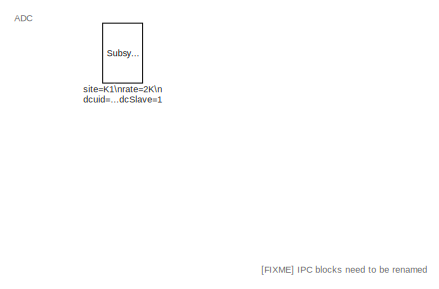
[diagram: root canvas - part 1/4, top right region]
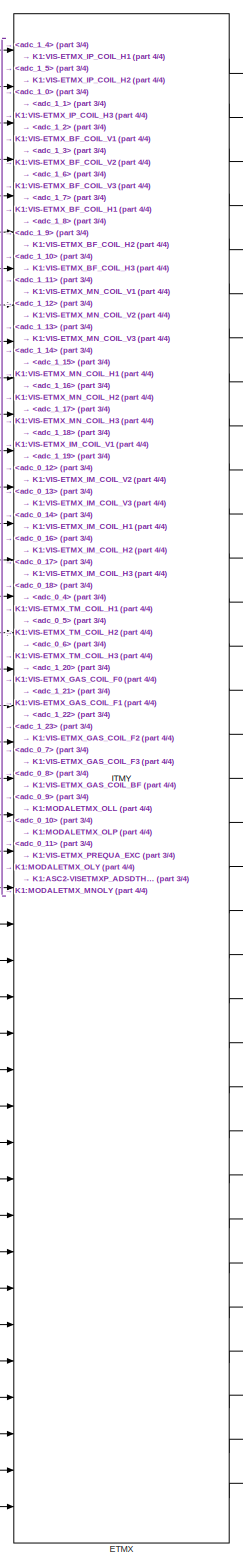
[diagram: root canvas - part 2/4, right side, full height]
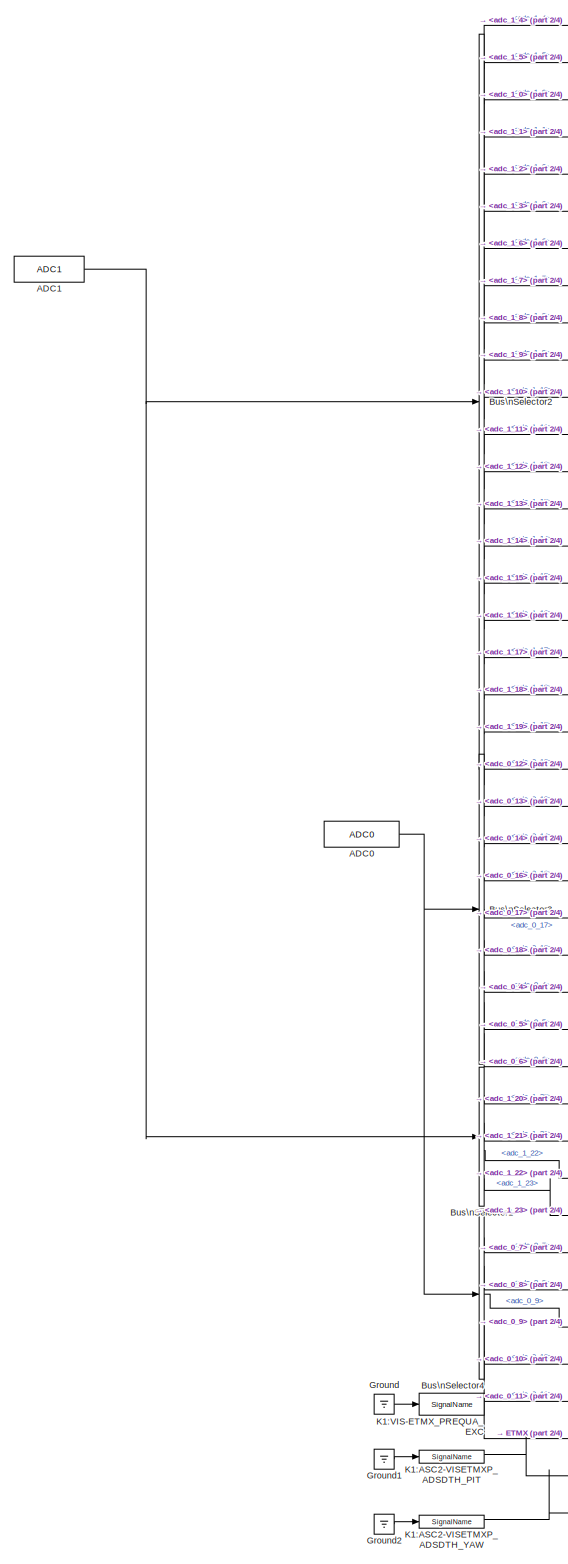
[diagram: root canvas - part 3/4, left side, full height]
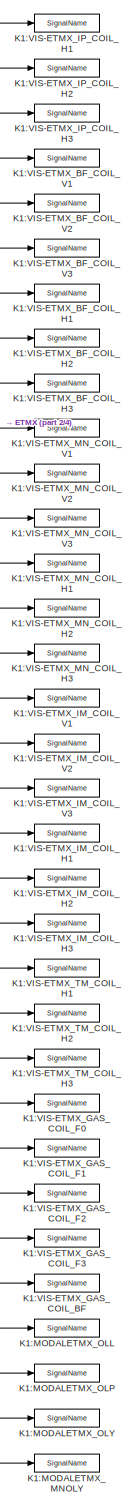
[diagram: root canvas - part 4/4, right side, full height]
MODEL k1modaletmx
KIND model
BLOCK [Reference] ADC0  REF=cdsAdcx0/ADC0
  AttributesFormatString = %<Description>\\n%<Tag>
  Description = type-GSC_16AI64SSA\ncard_num=0
  Ports = [0, 1]
  SID = 2415
  SourceBlock = cdsAdcx0/ADC0
  SourceType = SubSystem
  Tag = cdsAdc
BLOCK [Reference] ADC1  REF=cdsAdcx1/ADC1
  AttributesFormatString = %<Description>\\n%<Tag>
  Description = type-GSC_16AI64SSA\ncard_num=1
  Ports = [0, 1]
  SID = 2416
  SourceBlock = cdsAdcx1/ADC1
  SourceType = SubSystem
  Tag = cdsAdc
BLOCK [BusSelector] Bus\nSelector1
  OutputSignals = adc_1_20,adc_1_21,adc_1_22,adc_1_23
  Ports = [1, 4]
  SID = 2417
BLOCK [BusSelector] Bus\nSelector2
  OutputSignals = adc_1_4,adc_1_5,adc_1_0,adc_1_1,adc_1_2,adc_1_3,adc_1_6,adc_1_7,adc_1_8,adc_1_9,adc_1_10,adc_1_11,adc_1_12,adc_1_13,adc_1_14,adc_1_15,adc_1_16,adc_1_17,adc_1_18,adc_1_19
  Ports = [1, 20]
  SID = 2418
BLOCK [BusSelector] Bus\nSelector3
  OutputSignals = adc_0_12,adc_0_13,adc_0_14,adc_0_16,adc_0_17,adc_0_18,adc_0_4,adc_0_5,adc_0_6
  Ports = [1, 9]
  SID = 2419
BLOCK [BusSelector] Bus\nSelector4
  OutputSignals = adc_0_7,adc_0_8,adc_0_9,adc_0_10,adc_0_11
  Ports = [1, 5]
  SID = 2420
BLOCK [Reference] ETMX  REF=VISMODAL_MASTER/ITMY
  Ports = [41, 33]
  SID = 3966
  SourceBlock = VISMODAL_MASTER/ITMY
  SourceType = SubSystem
BLOCK [Ground] Ground
  SID = 2421
BLOCK [Ground] Ground1
  SID = 3976
BLOCK [Ground] Ground2
  SID = 3977
BLOCK [Reference] K1:ASC2-VISETMXP_ADSDTH_PIT  REF=cdsIPCx/SignalName
  AttributesFormatString = %<Description>\\n%<Tag>
  Description = card=0
  Ports = [1, 2]
  SID = 3974
  SourceBlock = cdsIPCx/SignalName
  SourceType = SubSystem
  Tag = cdsIPCx_RFM
BLOCK [Reference] K1:ASC2-VISETMXP_ADSDTH_YAW  REF=cdsIPCx/SignalName
  AttributesFormatString = %<Description>\\n%<Tag>
  Description = card=0
  Ports = [1, 2]
  SID = 3975
  SourceBlock = cdsIPCx/SignalName
  SourceType = SubSystem
  Tag = cdsIPCx_RFM
BLOCK [Reference] K1:MODALETMX_MNOLY  REF=cdsIPCx/SignalName
  AttributesFormatString = %<Tag>
  Description = Inter-Process Communication via Shared memory.
  Ports = [1, 2]
  SID = 3981
  SourceBlock = cdsIPCx/SignalName
  SourceType = SubSystem
  Tag = cdsIPCx_SHMEM
BLOCK [Reference] K1:MODALETMX_OLL  REF=cdsIPCx/SignalName
  AttributesFormatString = %<Tag>
  Description = Inter-Process Communication via Shared memory.
  Ports = [1, 2]
  SID = 3980
  SourceBlock = cdsIPCx/SignalName
  SourceType = SubSystem
  Tag = cdsIPCx_SHMEM
BLOCK [Reference] K1:MODALETMX_OLP  REF=cdsIPCx/SignalName
  AttributesFormatString = %<Tag>
  Description = Inter-Process Communication via Shared memory.
  Ports = [1, 2]
  SID = 3979
  SourceBlock = cdsIPCx/SignalName
  SourceType = SubSystem
  Tag = cdsIPCx_SHMEM
BLOCK [Reference] K1:MODALETMX_OLY  REF=cdsIPCx/SignalName
  AttributesFormatString = %<Tag>
  Description = Inter-Process Communication via Shared memory.
  Ports = [1, 2]
  SID = 3978
  SourceBlock = cdsIPCx/SignalName
  SourceType = SubSystem
  Tag = cdsIPCx_SHMEM
BLOCK [Reference] K1:VIS-ETMX_BF_COIL_H1  REF=cdsIPCx/SignalName
  AttributesFormatString = %<Tag>
  Description = Inter-Process Communication via Shared memory.
  Ports = [1, 2]
  SID = 3934
  SourceBlock = cdsIPCx/SignalName
  SourceType = SubSystem
  Tag = cdsIPCx_SHMEM
BLOCK [Reference] K1:VIS-ETMX_BF_COIL_H2  REF=cdsIPCx/SignalName
  AttributesFormatString = %<Tag>
  Description = Inter-Process Communication via Shared memory.
  Ports = [1, 2]
  SID = 3935
  SourceBlock = cdsIPCx/SignalName
  SourceType = SubSystem
  Tag = cdsIPCx_SHMEM
BLOCK [Reference] K1:VIS-ETMX_BF_COIL_H3  REF=cdsIPCx/SignalName
  AttributesFormatString = %<Tag>
  Description = Inter-Process Communication via Shared memory.
  Ports = [1, 2]
  SID = 3936
  SourceBlock = cdsIPCx/SignalName
  SourceType = SubSystem
  Tag = cdsIPCx_SHMEM
BLOCK [Reference] K1:VIS-ETMX_BF_COIL_V1  REF=cdsIPCx/SignalName
  AttributesFormatString = %<Tag>
  Description = Inter-Process Communication via Shared memory.
  Ports = [1, 2]
  SID = 3937
  SourceBlock = cdsIPCx/SignalName
  SourceType = SubSystem
  Tag = cdsIPCx_SHMEM
BLOCK [Reference] K1:VIS-ETMX_BF_COIL_V2  REF=cdsIPCx/SignalName
  AttributesFormatString = %<Tag>
  Description = Inter-Process Communication via Shared memory.
  Ports = [1, 2]
  SID = 3938
  SourceBlock = cdsIPCx/SignalName
  SourceType = SubSystem
  Tag = cdsIPCx_SHMEM
BLOCK [Reference] K1:VIS-ETMX_BF_COIL_V3  REF=cdsIPCx/SignalName
  AttributesFormatString = %<Tag>
  Description = Inter-Process Communication via Shared memory.
  Ports = [1, 2]
  SID = 3939
  SourceBlock = cdsIPCx/SignalName
  SourceType = SubSystem
  Tag = cdsIPCx_SHMEM
BLOCK [Reference] K1:VIS-ETMX_GAS_COIL_BF  REF=cdsIPCx/SignalName
  AttributesFormatString = %<Tag>
  Description = Inter-Process Communication via Shared memory.
  Ports = [1, 2]
  SID = 3940
  SourceBlock = cdsIPCx/SignalName
  SourceType = SubSystem
  Tag = cdsIPCx_SHMEM
BLOCK [Reference] K1:VIS-ETMX_GAS_COIL_F0  REF=cdsIPCx/SignalName
  AttributesFormatString = %<Tag>
  Description = Inter-Process Communication via Shared memory.
  Ports = [1, 2]
  SID = 3941
  SourceBlock = cdsIPCx/SignalName
  SourceType = SubSystem
  Tag = cdsIPCx_SHMEM
BLOCK [Reference] K1:VIS-ETMX_GAS_COIL_F1  REF=cdsIPCx/SignalName
  AttributesFormatString = %<Tag>
  Description = Inter-Process Communication via Shared memory.
  Ports = [1, 2]
  SID = 3942
  SourceBlock = cdsIPCx/SignalName
  SourceType = SubSystem
  Tag = cdsIPCx_SHMEM
BLOCK [Reference] K1:VIS-ETMX_GAS_COIL_F2  REF=cdsIPCx/SignalName
  AttributesFormatString = %<Tag>
  Description = Inter-Process Communication via Shared memory.
  Ports = [1, 2]
  SID = 3943
  SourceBlock = cdsIPCx/SignalName
  SourceType = SubSystem
  Tag = cdsIPCx_SHMEM
BLOCK [Reference] K1:VIS-ETMX_GAS_COIL_F3  REF=cdsIPCx/SignalName
  AttributesFormatString = %<Tag>
  Description = Inter-Process Communication via Shared memory.
  Ports = [1, 2]
  SID = 3944
  SourceBlock = cdsIPCx/SignalName
  SourceType = SubSystem
  Tag = cdsIPCx_SHMEM
BLOCK [Reference] K1:VIS-ETMX_IM_COIL_H1  REF=cdsIPCx/SignalName
  AttributesFormatString = %<Tag>
  Description = Inter-Process Communication via Shared memory.
  Ports = [1, 2]
  SID = 3945
  SourceBlock = cdsIPCx/SignalName
  SourceType = SubSystem
  Tag = cdsIPCx_SHMEM
BLOCK [Reference] K1:VIS-ETMX_IM_COIL_H2  REF=cdsIPCx/SignalName
  AttributesFormatString = %<Tag>
  Description = Inter-Process Communication via Shared memory.
  Ports = [1, 2]
  SID = 3946
  SourceBlock = cdsIPCx/SignalName
  SourceType = SubSystem
  Tag = cdsIPCx_SHMEM
BLOCK [Reference] K1:VIS-ETMX_IM_COIL_H3  REF=cdsIPCx/SignalName
  AttributesFormatString = %<Tag>
  Description = Inter-Process Communication via Shared memory.
  Ports = [1, 2]
  SID = 3947
  SourceBlock = cdsIPCx/SignalName
  SourceType = SubSystem
  Tag = cdsIPCx_SHMEM
BLOCK [Reference] K1:VIS-ETMX_IM_COIL_V1  REF=cdsIPCx/SignalName
  AttributesFormatString = %<Tag>
  Description = Inter-Process Communication via Shared memory.
  Ports = [1, 2]
  SID = 3948
  SourceBlock = cdsIPCx/SignalName
  SourceType = SubSystem
  Tag = cdsIPCx_SHMEM
BLOCK [Reference] K1:VIS-ETMX_IM_COIL_V2  REF=cdsIPCx/SignalName
  AttributesFormatString = %<Tag>
  Description = Inter-Process Communication via Shared memory.
  Ports = [1, 2]
  SID = 3949
  SourceBlock = cdsIPCx/SignalName
  SourceType = SubSystem
  Tag = cdsIPCx_SHMEM
BLOCK [Reference] K1:VIS-ETMX_IM_COIL_V3  REF=cdsIPCx/SignalName
  AttributesFormatString = %<Tag>
  Description = Inter-Process Communication via Shared memory.
  Ports = [1, 2]
  SID = 3950
  SourceBlock = cdsIPCx/SignalName
  SourceType = SubSystem
  Tag = cdsIPCx_SHMEM
BLOCK [Reference] K1:VIS-ETMX_IP_COIL_H1  REF=cdsIPCx/SignalName
  AttributesFormatString = %<Tag>
  Description = Inter-Process Communication via Shared memory.
  Ports = [1, 2]
  SID = 3951
  SourceBlock = cdsIPCx/SignalName
  SourceType = SubSystem
  Tag = cdsIPCx_SHMEM
BLOCK [Reference] K1:VIS-ETMX_IP_COIL_H2  REF=cdsIPCx/SignalName
  AttributesFormatString = %<Tag>
  Description = Inter-Process Communication via Shared memory.
  Ports = [1, 2]
  SID = 3952
  SourceBlock = cdsIPCx/SignalName
  SourceType = SubSystem
  Tag = cdsIPCx_SHMEM
BLOCK [Reference] K1:VIS-ETMX_IP_COIL_H3  REF=cdsIPCx/SignalName
  AttributesFormatString = %<Tag>
  Description = Inter-Process Communication via Shared memory.
  Ports = [1, 2]
  SID = 3953
  SourceBlock = cdsIPCx/SignalName
  SourceType = SubSystem
  Tag = cdsIPCx_SHMEM
BLOCK [Reference] K1:VIS-ETMX_MN_COIL_H1  REF=cdsIPCx/SignalName
  AttributesFormatString = %<Tag>
  Description = Inter-Process Communication via Shared memory.
  Ports = [1, 2]
  SID = 3954
  SourceBlock = cdsIPCx/SignalName
  SourceType = SubSystem
  Tag = cdsIPCx_SHMEM
BLOCK [Reference] K1:VIS-ETMX_MN_COIL_H2  REF=cdsIPCx/SignalName
  AttributesFormatString = %<Tag>
  Description = Inter-Process Communication via Shared memory.
  Ports = [1, 2]
  SID = 3955
  SourceBlock = cdsIPCx/SignalName
  SourceType = SubSystem
  Tag = cdsIPCx_SHMEM
BLOCK [Reference] K1:VIS-ETMX_MN_COIL_H3  REF=cdsIPCx/SignalName
  AttributesFormatString = %<Tag>
  Description = Inter-Process Communication via Shared memory.
  Ports = [1, 2]
  SID = 3956
  SourceBlock = cdsIPCx/SignalName
  SourceType = SubSystem
  Tag = cdsIPCx_SHMEM
BLOCK [Reference] K1:VIS-ETMX_MN_COIL_V1  REF=cdsIPCx/SignalName
  AttributesFormatString = %<Tag>
  Description = Inter-Process Communication via Shared memory.
  Ports = [1, 2]
  SID = 3957
  SourceBlock = cdsIPCx/SignalName
  SourceType = SubSystem
  Tag = cdsIPCx_SHMEM
BLOCK [Reference] K1:VIS-ETMX_MN_COIL_V2  REF=cdsIPCx/SignalName
  AttributesFormatString = %<Tag>
  Description = Inter-Process Communication via Shared memory.
  Ports = [1, 2]
  SID = 3958
  SourceBlock = cdsIPCx/SignalName
  SourceType = SubSystem
  Tag = cdsIPCx_SHMEM
BLOCK [Reference] K1:VIS-ETMX_MN_COIL_V3  REF=cdsIPCx/SignalName
  AttributesFormatString = %<Tag>
  Description = Inter-Process Communication via Shared memory.
  Ports = [1, 2]
  SID = 3959
  SourceBlock = cdsIPCx/SignalName
  SourceType = SubSystem
  Tag = cdsIPCx_SHMEM
BLOCK [Reference] K1:VIS-ETMX_PREQUA_EXC  REF=cdsIPCx/SignalName
  AttributesFormatString = %<Tag>
  Description = Inter-Process Communication via Shared memory.
  Ports = [1, 2]
  SID = 3960
  SourceBlock = cdsIPCx/SignalName
  SourceType = SubSystem
  Tag = cdsIPCx_SHMEM
BLOCK [Reference] K1:VIS-ETMX_TM_COIL_H1  REF=cdsIPCx/SignalName
  AttributesFormatString = %<Tag>
  Description = Inter-Process Communication via Shared memory.
  Ports = [1, 2]
  SID = 3961
  SourceBlock = cdsIPCx/SignalName
  SourceType = SubSystem
  Tag = cdsIPCx_SHMEM
BLOCK [Reference] K1:VIS-ETMX_TM_COIL_H2  REF=cdsIPCx/SignalName
  AttributesFormatString = %<Tag>
  Description = Inter-Process Communication via Shared memory.
  Ports = [1, 2]
  SID = 3962
  SourceBlock = cdsIPCx/SignalName
  SourceType = SubSystem
  Tag = cdsIPCx_SHMEM
BLOCK [Reference] K1:VIS-ETMX_TM_COIL_H3  REF=cdsIPCx/SignalName
  AttributesFormatString = %<Tag>
  Description = Inter-Process Communication via Shared memory.
  Ports = [1, 2]
  SID = 3963
  SourceBlock = cdsIPCx/SignalName
  SourceType = SubSystem
  Tag = cdsIPCx_SHMEM
BLOCK [Reference] site=K1\nrate=2K\ndcuid=105\nhost=k1ex1\nspecific_cpu=5\nadcSlave=1  REF=cdsParameters/Subsystem
  AttributesFormatString = %<Tag>
  Description = Purpose:                                                                                                                                                                                                                                \nProvide system parameters to the FE code generator to properly configure the generated EPICS names, rep rate of the FE controller, and the Data Acquisition node ID fo...<+2934ch>
  Ports = []
  SID = 3
  SourceBlock = cdsParameters/Subsystem
  SourceType = SubSystem
  Tag = cdsParameters
ANNOTATION (root): \n \n ADC
ANNOTATION (root): \n \n [FIXME] IPC blocks need to be renamed
NET ADC0:1 -> Bus\nSelector3:1, Bus\nSelector4:1
NET ADC1:1 -> Bus\nSelector1:1, Bus\nSelector2:1
LINE Bus\nSelector1:1 -> ETMX:30
LINE Bus\nSelector1:2 -> ETMX:31
LINE Bus\nSelector1:3 -> ETMX:32
LINE Bus\nSelector1:4 -> ETMX:33
LINE Bus\nSelector2:1 -> ETMX:1
LINE Bus\nSelector2:10 -> ETMX:10
LINE Bus\nSelector2:11 -> ETMX:11
LINE Bus\nSelector2:12 -> ETMX:12
LINE Bus\nSelector2:13 -> ETMX:13
LINE Bus\nSelector2:14 -> ETMX:14
LINE Bus\nSelector2:15 -> ETMX:15
LINE Bus\nSelector2:16 -> ETMX:16
LINE Bus\nSelector2:17 -> ETMX:17
LINE Bus\nSelector2:18 -> ETMX:18
LINE Bus\nSelector2:19 -> ETMX:19
LINE Bus\nSelector2:2 -> ETMX:2
LINE Bus\nSelector2:20 -> ETMX:20
LINE Bus\nSelector2:3 -> ETMX:3
LINE Bus\nSelector2:4 -> ETMX:4
LINE Bus\nSelector2:5 -> ETMX:5
LINE Bus\nSelector2:6 -> ETMX:6
LINE Bus\nSelector2:7 -> ETMX:7
LINE Bus\nSelector2:8 -> ETMX:8
LINE Bus\nSelector2:9 -> ETMX:9
LINE Bus\nSelector3:1 -> ETMX:21
LINE Bus\nSelector3:2 -> ETMX:22
LINE Bus\nSelector3:3 -> ETMX:23
LINE Bus\nSelector3:4 -> ETMX:24
LINE Bus\nSelector3:5 -> ETMX:25
LINE Bus\nSelector3:6 -> ETMX:26
LINE Bus\nSelector3:7 -> ETMX:27
LINE Bus\nSelector3:8 -> ETMX:28
LINE Bus\nSelector3:9 -> ETMX:29
LINE Bus\nSelector4:1 -> ETMX:34
LINE Bus\nSelector4:2 -> ETMX:35
LINE Bus\nSelector4:3 -> ETMX:36
LINE Bus\nSelector4:4 -> ETMX:37
LINE Bus\nSelector4:5 -> ETMX:38
LINE ETMX:1 -> K1:VIS-ETMX_IP_COIL_H1:1
LINE ETMX:10 -> K1:VIS-ETMX_MN_COIL_V1:1
LINE ETMX:11 -> K1:VIS-ETMX_MN_COIL_V2:1
LINE ETMX:12 -> K1:VIS-ETMX_MN_COIL_V3:1
LINE ETMX:13 -> K1:VIS-ETMX_MN_COIL_H1:1
LINE ETMX:14 -> K1:VIS-ETMX_MN_COIL_H2:1
LINE ETMX:15 -> K1:VIS-ETMX_MN_COIL_H3:1
LINE ETMX:16 -> K1:VIS-ETMX_IM_COIL_V1:1
LINE ETMX:17 -> K1:VIS-ETMX_IM_COIL_V2:1
LINE ETMX:18 -> K1:VIS-ETMX_IM_COIL_V3:1
LINE ETMX:19 -> K1:VIS-ETMX_IM_COIL_H1:1
LINE ETMX:2 -> K1:VIS-ETMX_IP_COIL_H2:1
LINE ETMX:20 -> K1:VIS-ETMX_IM_COIL_H2:1
LINE ETMX:21 -> K1:VIS-ETMX_IM_COIL_H3:1
LINE ETMX:22 -> K1:VIS-ETMX_TM_COIL_H1:1
LINE ETMX:23 -> K1:VIS-ETMX_TM_COIL_H2:1
LINE ETMX:24 -> K1:VIS-ETMX_TM_COIL_H3:1
LINE ETMX:25 -> K1:VIS-ETMX_GAS_COIL_F0:1
LINE ETMX:26 -> K1:VIS-ETMX_GAS_COIL_F1:1
LINE ETMX:27 -> K1:VIS-ETMX_GAS_COIL_F2:1
LINE ETMX:28 -> K1:VIS-ETMX_GAS_COIL_F3:1
LINE ETMX:29 -> K1:VIS-ETMX_GAS_COIL_BF:1
LINE ETMX:3 -> K1:VIS-ETMX_IP_COIL_H3:1
LINE ETMX:30 -> K1:MODALETMX_OLL:1
LINE ETMX:31 -> K1:MODALETMX_OLP:1
LINE ETMX:32 -> K1:MODALETMX_OLY:1
LINE ETMX:33 -> K1:MODALETMX_MNOLY:1
LINE ETMX:4 -> K1:VIS-ETMX_BF_COIL_V1:1
LINE ETMX:5 -> K1:VIS-ETMX_BF_COIL_V2:1
LINE ETMX:6 -> K1:VIS-ETMX_BF_COIL_V3:1
LINE ETMX:7 -> K1:VIS-ETMX_BF_COIL_H1:1
LINE ETMX:8 -> K1:VIS-ETMX_BF_COIL_H2:1
LINE ETMX:9 -> K1:VIS-ETMX_BF_COIL_H3:1
LINE Ground1:1 -> K1:ASC2-VISETMXP_ADSDTH_PIT:1
LINE Ground2:1 -> K1:ASC2-VISETMXP_ADSDTH_YAW:1
LINE Ground:1 -> K1:VIS-ETMX_PREQUA_EXC:1
LINE K1:ASC2-VISETMXP_ADSDTH_PIT:1 -> ETMX:40
LINE K1:ASC2-VISETMXP_ADSDTH_YAW:1 -> ETMX:41
LINE K1:VIS-ETMX_PREQUA_EXC:1 -> ETMX:39
note: NET lines group one-source signal fan-out (src -> all destinations, sorted); 1:1 wires keep LINE
